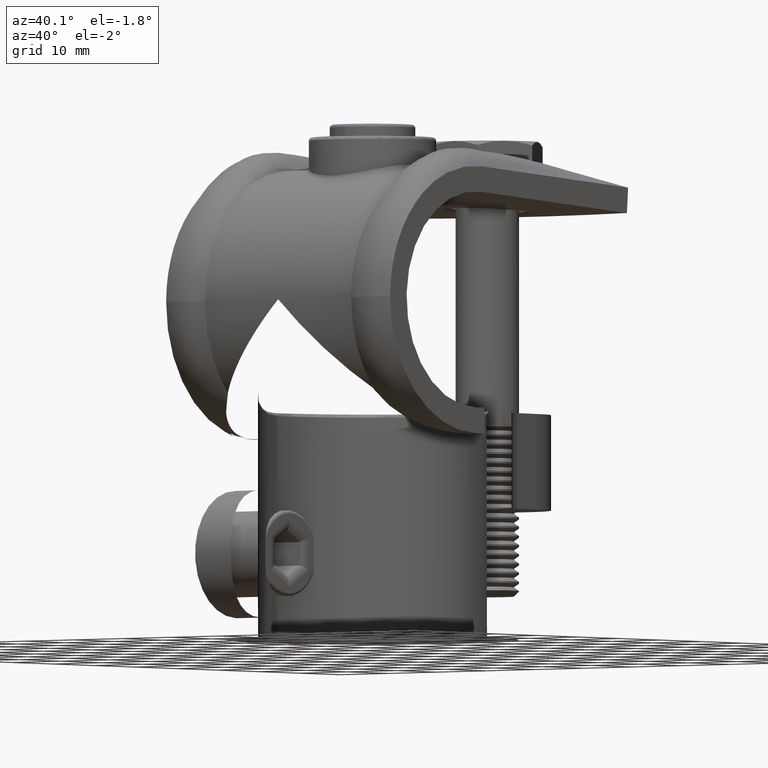
[diagram: clean part render]
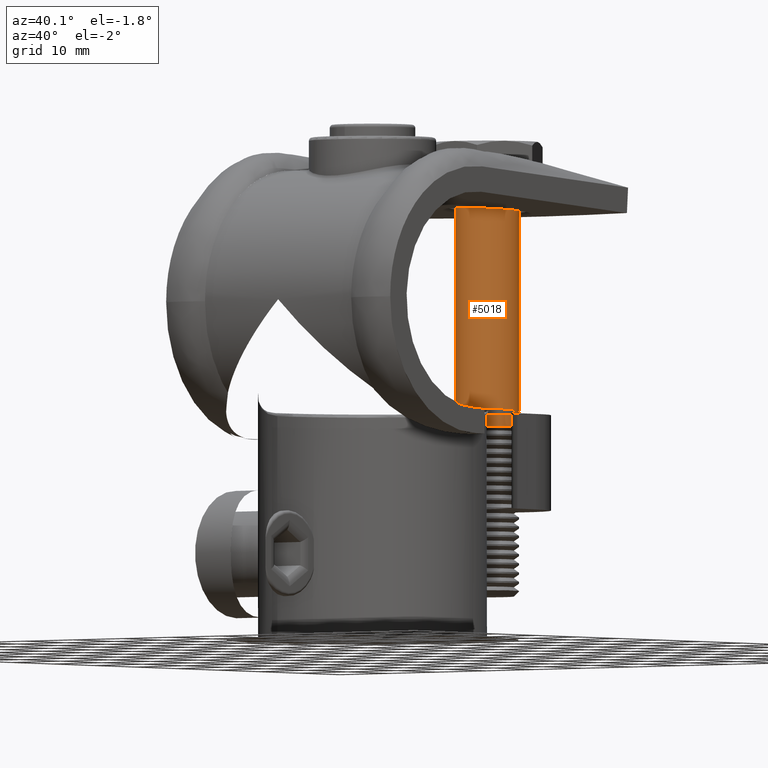
[diagram: same view with one face highlighted and labeled with its STEP entity id]
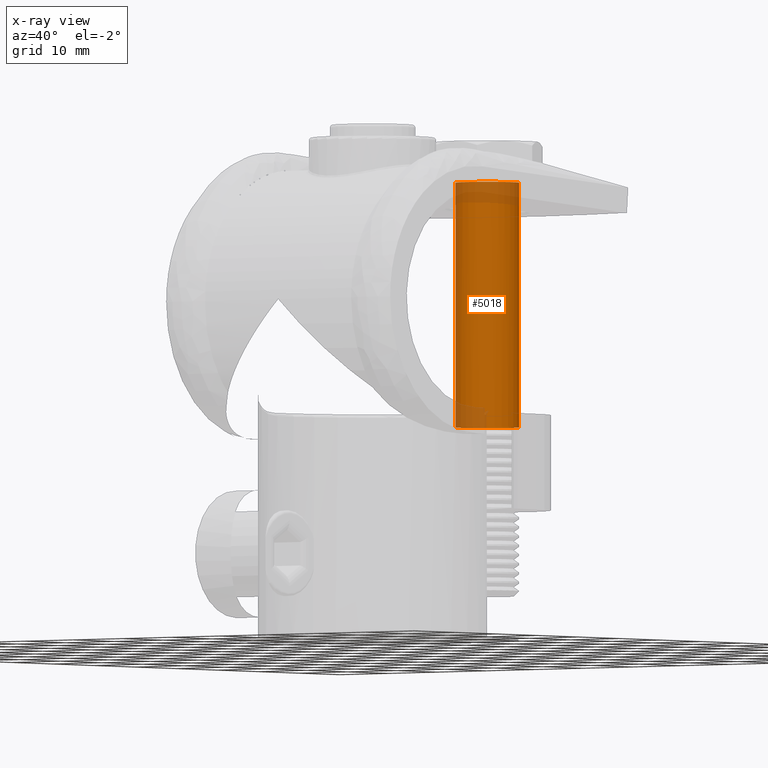
[diagram: x-ray of the same camera — body ghosted, the highlighted face saturated]
A machine part, auxiliary view. The second image highlights one B-rep face of the part: STEP entity #5018.
The next image is the same camera in x-ray: the body ghosted, the highlighted face saturated — about 13% of this face is hidden behind the body in this view.
In plain terms, the highlighted cylindrical surface (bore or boss wall) has radius 5 mm, axis along (0, 0, 1).
Its self-contained STEP definition (entity closure, byte-faithful):
#112 = VERTEX_POINT ( 'NONE', #3284 ) ;
#188 = VERTEX_POINT ( 'NONE', #1477 ) ;
#746 = EDGE_LOOP ( 'NONE', ( #992 ) ) ;
#893 = AXIS2_PLACEMENT_3D ( 'NONE', #1725, #4873, #2113 ) ;
#992 = ORIENTED_EDGE ( 'NONE', *, *, #4092, .T. ) ;
#1431 = DIRECTION ( 'NONE',  ( 0.000000000000000000, 0.000000000000000000, 1.000000000000000000 ) ) ;
#1477 = CARTESIAN_POINT ( 'NONE',  ( 6.400000000000000355, 0.000000000000000000, -5.000000000000000000 ) ) ;
#1480 = AXIS2_PLACEMENT_3D ( 'NONE', #3291, #5501, #1431 ) ;
#1725 = CARTESIAN_POINT ( 'NONE',  ( 44.82022815836234741, 5.877526135588520786E-15, 0.000000000000000000 ) ) ;
#1726 = FACE_OUTER_BOUND ( 'NONE', #746, .T. ) ;
#2113 = DIRECTION ( 'NONE',  ( 0.000000000000000000, -1.000000000000000000, 0.000000000000000000 ) ) ;
#2656 = EDGE_CURVE ( 'NONE', #188, #188, #5372, .T. ) ;
#2774 = DIRECTION ( 'NONE',  ( -1.000000000000000000, -0.000000000000000000, 0.000000000000000000 ) ) ;
#3184 = FACE_OUTER_BOUND ( 'NONE', #4627, .T. ) ;
#3284 = CARTESIAN_POINT ( 'NONE',  ( 44.82022815836234741, -5.000000000000000000, 0.000000000000000000 ) ) ;
#3291 = CARTESIAN_POINT ( 'NONE',  ( 0.000000000000000000, 0.000000000000000000, 0.000000000000000000 ) ) ;
#3831 = CIRCLE ( 'NONE', #893, 5.000000000000006217 ) ;
#4092 = EDGE_CURVE ( 'NONE', #112, #112, #3831, .T. ) ;
#4107 = CYLINDRICAL_SURFACE ( 'NONE', #1480, 5.000000000000000000 ) ;
#4115 = CARTESIAN_POINT ( 'NONE',  ( 6.400000000000000355, 0.000000000000000000, 0.000000000000000000 ) ) ;
#4535 = AXIS2_PLACEMENT_3D ( 'NONE', #4115, #2774, #5057 ) ;
#4627 = EDGE_LOOP ( 'NONE', ( #5841 ) ) ;
#4873 = DIRECTION ( 'NONE',  ( -1.000000000000000000, -1.224606353822377258E-16, -0.000000000000000000 ) ) ;
#5018 = ADVANCED_FACE ( 'NONE', ( #1726, #3184 ), #4107, .T. ) ;
#5057 = DIRECTION ( 'NONE',  ( 0.000000000000000000, 0.000000000000000000, -1.000000000000000000 ) ) ;
#5372 = CIRCLE ( 'NONE', #4535, 5.000000000000000000 ) ;
#5501 = DIRECTION ( 'NONE',  ( -1.000000000000000000, -0.000000000000000000, -0.000000000000000000 ) ) ;
#5841 = ORIENTED_EDGE ( 'NONE', *, *, #2656, .F. ) ;